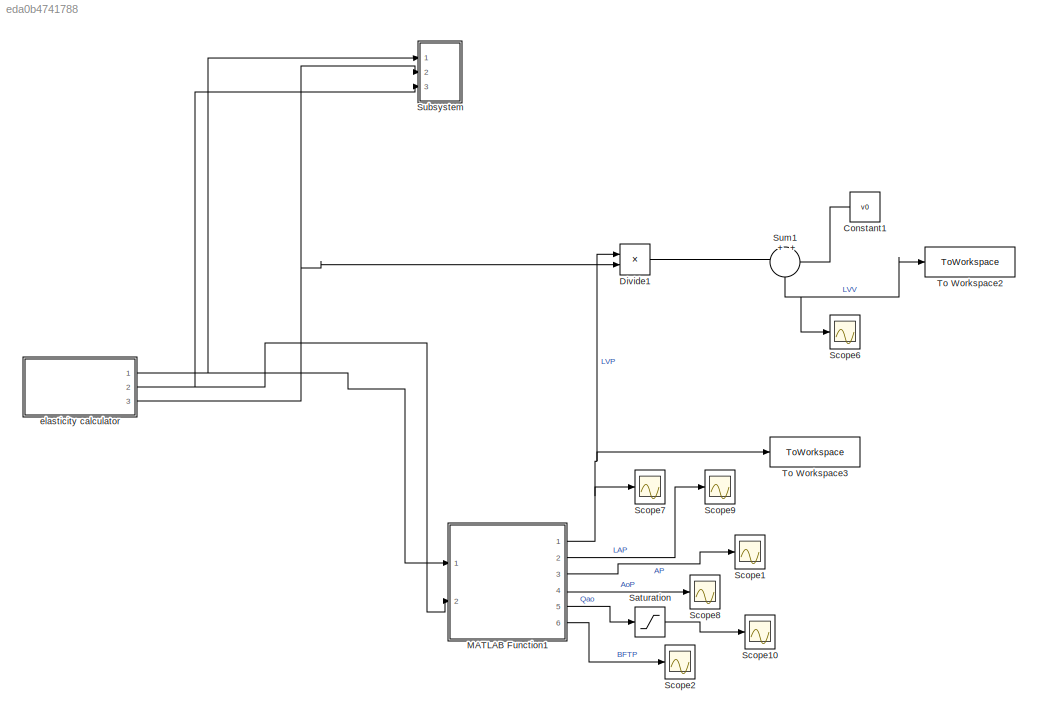
MODEL slx_eda0b4741788
KIND model
CONFIG AbsTol = auto
CONFIG EnableMultiTasking = off
CONFIG FixedStep = 1e-5
CONFIG MaxStep = auto
CONFIG MinStep = auto
CONFIG RelTol = 1e-3
CONFIG SampleTimeConstraint = Unconstrained
CONFIG SolverName = ode1
CONFIG StartTime = 0.0
CONFIG StopTime = 30
BLOCK [Constant] Constant1
  NameLocation = top
  Value = v0
BLOCK [Product] Divide1
  Inputs = */
  Ports = [2, 1]
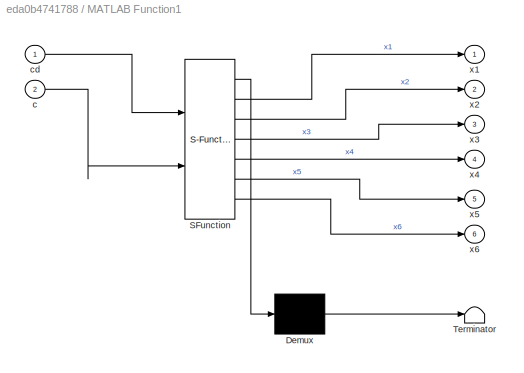
BLOCK [SubSystem] MATLAB Function1
  ErrorFcn = Stateflow.Translate.translate
  PermitHierarchicalResolution = ExplicitOnly
  Ports = [2, 6]
  RequestExecContextInheritance = off
  SFBlockType = MATLAB Function
  TreatAsAtomicUnit = on
BLOCK [Demux] MATLAB Function1/ Demux 
  Outputs = 1
  Ports = [1, 1]
BLOCK [S-Function] MATLAB Function1/ SFunction 
  EnableBusSupport = on
  FunctionName = sf_sfun
  PortCounts = [2 7]
  Ports = [2, 7]
  SFcnIsStateOwnerBlock = off
  SFunctionDeploymentMode = off
  Tag = Stateflow S-Function 3
BLOCK [Terminator] MATLAB Function1/ Terminator 
BLOCK [Inport] MATLAB Function1/c
  Port = 2
BLOCK [Inport] MATLAB Function1/cd
BLOCK [Outport] MATLAB Function1/x1
BLOCK [Outport] MATLAB Function1/x2
  Port = 2
BLOCK [Outport] MATLAB Function1/x3
  Port = 3
BLOCK [Outport] MATLAB Function1/x4
  Port = 4
BLOCK [Outport] MATLAB Function1/x5
  Port = 5
BLOCK [Outport] MATLAB Function1/x6
  Port = 6
BLOCK [Saturate] Saturation
  LowerLimit = 0
  UpperLimit = 770
BLOCK [Scope] Scope1
  Floating = off
  NumInputPorts = 1
  Ports = [1]
  ScopeSpecificationString = Simulink.scopes.TimeScopeBlockCfg('CurrentConfiguration', extmgr.ConfigurationSet(extmgr.Configuration('Core','General UI',true,'FigureColor',[1 1 1]),extmgr.Configuration('Core','Source UI',true),extmgr.Configuration('Sources','WiredSimulink',true,'DataLoggingVariableName','ScopeData7'),extmgr.Configuration('Visuals','Time Domain',true,'SerializedDisplays',{struct('MinYLimReal','-35.72145','MaxYL...<+2368ch>
BLOCK [Scope] Scope10
  Floating = off
  NumInputPorts = 1
  Ports = [1]
  ScopeSpecificationString = Simulink.scopes.TimeScopeBlockCfg('CurrentConfiguration', extmgr.ConfigurationSet(extmgr.Configuration('Core','General UI',true,'FigureColor',[1 1 1]),extmgr.Configuration('Core','Source UI',true),extmgr.Configuration('Sources','WiredSimulink',true,'DataLoggingVariableName','ScopeData4'),extmgr.Configuration('Visuals','Time Domain',true,'SerializedDisplays',{struct('MinYLimReal','-96.25','MaxYLimR...<+2366ch>
BLOCK [Scope] Scope2
  Floating = off
  NumInputPorts = 1
  Ports = [1]
  ScopeSpecificationString = Simulink.scopes.TimeScopeBlockCfg('CurrentConfiguration', extmgr.ConfigurationSet(extmgr.Configuration('Core','General UI',true,'FigureColor',[1 1 1]),extmgr.Configuration('Core','Source UI',true),extmgr.Configuration('Sources','WiredSimulink',true,'DataLoggingVariableName','ScopeData5'),extmgr.Configuration('Visuals','Time Domain',true,'SerializedDisplays',{struct('MinYLimReal','-54779.61484','Ma...<+2435ch>
BLOCK [Scope] Scope6
  Floating = off
  NumInputPorts = 1
  Ports = [1]
  ScopeSpecificationString = Simulink.scopes.TimeScopeBlockCfg('CurrentConfiguration', extmgr.ConfigurationSet(extmgr.Configuration('Core','General UI',true,'FigureColor',[1 1 1]),extmgr.Configuration('Core','Source UI',true),extmgr.Configuration('Sources','WiredSimulink',true,'DataLoggingVariableName','ScopeData8'),extmgr.Configuration('Visuals','Time Domain',true,'SerializedDisplays',{struct('MinYLimReal','37.02838','MaxYLi...<+2355ch>
BLOCK [Scope] Scope7
  Floating = off
  NumInputPorts = 1
  Ports = [1]
  ScopeSpecificationString = Simulink.scopes.TimeScopeBlockCfg('CurrentConfiguration', extmgr.ConfigurationSet(extmgr.Configuration('Core','General UI',true,'FigureColor',[1 1 1]),extmgr.Configuration('Core','Source UI',true),extmgr.Configuration('Sources','WiredSimulink',true,'DataLoggingVariableName','ScopeData2'),extmgr.Configuration('Visuals','Time Domain',true,'SerializedDisplays',{struct('MinYLimReal','-5.81114','MaxYLi...<+2391ch>
BLOCK [Scope] Scope8
  Floating = off
  NumInputPorts = 1
  Ports = [1]
  ScopeSpecificationString = Simulink.scopes.TimeScopeBlockCfg('CurrentConfiguration', extmgr.ConfigurationSet(extmgr.Configuration('Core','General UI',true,'FigureColor',[1 1 1]),extmgr.Configuration('Core','Source UI',true),extmgr.Configuration('Sources','WiredSimulink',true,'DataLoggingVariableName','ScopeData6'),extmgr.Configuration('Visuals','Time Domain',true,'SerializedDisplays',{struct('MinYLimReal','-59.11272','MaxYL...<+2374ch>
BLOCK [Scope] Scope9
  Floating = off
  NumInputPorts = 1
  Ports = [1]
  ScopeSpecificationString = Simulink.scopes.TimeScopeBlockCfg('CurrentConfiguration', extmgr.ConfigurationSet(extmgr.Configuration('Core','General UI',true,'FigureColor',[1 1 1]),extmgr.Configuration('Core','Source UI',true),extmgr.Configuration('Sources','WiredSimulink',true,'DataLoggingVariableName','ScopeData3'),extmgr.Configuration('Visuals','Time Domain',true,'SerializedDisplays',{struct('MinYLimReal','5.11583','MaxYLim...<+2366ch>
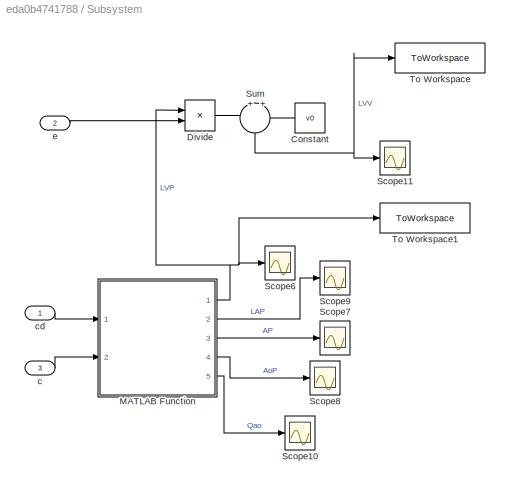
BLOCK [SubSystem] Subsystem
  Ports = [3]
  RequestExecContextInheritance = off
BLOCK [Constant] Subsystem/Constant
  NameLocation = top
  Value = v0
BLOCK [Product] Subsystem/Divide
  Inputs = */
  Ports = [2, 1]
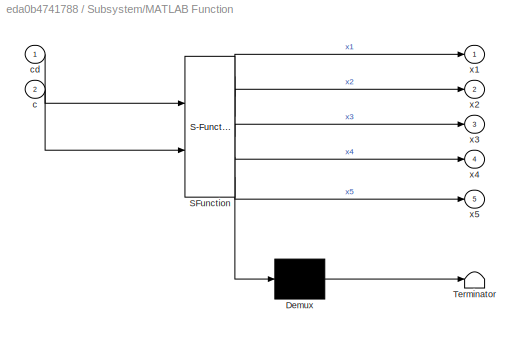
BLOCK [SubSystem] Subsystem/MATLAB Function
  ErrorFcn = Stateflow.Translate.translate
  PermitHierarchicalResolution = ExplicitOnly
  Ports = [2, 5]
  RequestExecContextInheritance = off
  SFBlockType = MATLAB Function
  TreatAsAtomicUnit = on
BLOCK [Demux] Subsystem/MATLAB Function/ Demux 
  Outputs = 1
  Ports = [1, 1]
BLOCK [S-Function] Subsystem/MATLAB Function/ SFunction 
  EnableBusSupport = on
  FunctionName = sf_sfun
  PortCounts = [2 6]
  Ports = [2, 6]
  SFcnIsStateOwnerBlock = off
  SFunctionDeploymentMode = off
  Tag = Stateflow S-Function 1
BLOCK [Terminator] Subsystem/MATLAB Function/ Terminator 
BLOCK [Inport] Subsystem/MATLAB Function/c
  Port = 2
BLOCK [Inport] Subsystem/MATLAB Function/cd
BLOCK [Outport] Subsystem/MATLAB Function/x1
BLOCK [Outport] Subsystem/MATLAB Function/x2
  Port = 2
BLOCK [Outport] Subsystem/MATLAB Function/x3
  Port = 3
BLOCK [Outport] Subsystem/MATLAB Function/x4
  Port = 4
BLOCK [Outport] Subsystem/MATLAB Function/x5
  Port = 5
BLOCK [Scope] Subsystem/Scope10
  Floating = off
  NumInputPorts = 1
  Ports = [1]
  ScopeSpecificationString = Simulink.scopes.TimeScopeBlockCfg('CurrentConfiguration', extmgr.ConfigurationSet(extmgr.Configuration('Core','General UI',true,'FigureColor',[1 1 1]),extmgr.Configuration('Core','Source UI',true),extmgr.Configuration('Sources','WiredSimulink',true,'DataLoggingVariableName','ScopeData13'),extmgr.Configuration('Visuals','Time Domain',true,'SerializedDisplays',{struct('MinYLimReal','-96.93572','MaxY...<+2369ch>
BLOCK [Scope] Subsystem/Scope11
  Floating = off
  NumInputPorts = 1
  Ports = [1]
  ScopeSpecificationString = Simulink.scopes.TimeScopeBlockCfg('CurrentConfiguration', extmgr.ConfigurationSet(extmgr.Configuration('Core','General UI',true,'FigureColor',[1 1 1]),extmgr.Configuration('Core','Source UI',true),extmgr.Configuration('Sources','WiredSimulink',true,'DataLoggingVariableName','ScopeData14'),extmgr.Configuration('Visuals','Time Domain',true,'SerializedDisplays',{struct('MinYLimReal','55.52124','MaxYL...<+2369ch>
BLOCK [Scope] Subsystem/Scope6
  Floating = off
  NumInputPorts = 1
  Ports = [1]
  ScopeSpecificationString = Simulink.scopes.TimeScopeBlockCfg('CurrentConfiguration', extmgr.ConfigurationSet(extmgr.Configuration('Core','General UI',true,'FigureColor',[1 1 1]),extmgr.Configuration('Core','Source UI',true),extmgr.Configuration('Sources','WiredSimulink',true,'DataLoggingVariableName','ScopeData9'),extmgr.Configuration('Visuals','Time Domain',true,'SerializedDisplays',{struct('MinYLimReal','-11.95975','MaxYL...<+2370ch>
BLOCK [Scope] Subsystem/Scope7
  Floating = off
  NumInputPorts = 1
  Ports = [1]
  ScopeSpecificationString = Simulink.scopes.TimeScopeBlockCfg('CurrentConfiguration', extmgr.ConfigurationSet(extmgr.Configuration('Core','General UI',true,'FigureColor',[1 1 1]),extmgr.Configuration('Core','Source UI',true),extmgr.Configuration('Sources','WiredSimulink',true,'DataLoggingVariableName','ScopeData10'),extmgr.Configuration('Visuals','Time Domain',true,'SerializedDisplays',{struct('MinYLimReal','63.71827','MaxYL...<+2369ch>
BLOCK [Scope] Subsystem/Scope8
  Floating = off
  NumInputPorts = 1
  Ports = [1]
  ScopeSpecificationString = Simulink.scopes.TimeScopeBlockCfg('CurrentConfiguration', extmgr.ConfigurationSet(extmgr.Configuration('Core','General UI',true,'FigureColor',[1 1 1]),extmgr.Configuration('Core','Source UI',true),extmgr.Configuration('Sources','WiredSimulink',true,'DataLoggingVariableName','ScopeData11'),extmgr.Configuration('Visuals','Time Domain',true,'SerializedDisplays',{struct('MinYLimReal','63.5398','MaxYLi...<+2709ch>
BLOCK [Scope] Subsystem/Scope9
  Floating = off
  NumInputPorts = 1
  Ports = [1]
  ScopeSpecificationString = Simulink.scopes.TimeScopeBlockCfg('CurrentConfiguration', extmgr.ConfigurationSet(extmgr.Configuration('Core','General UI',true,'FigureColor',[1 1 1]),extmgr.Configuration('Core','Source UI',true),extmgr.Configuration('Sources','WiredSimulink',true,'DataLoggingVariableName','ScopeData12'),extmgr.Configuration('Visuals','Time Domain',true,'SerializedDisplays',{struct('MinYLimReal','5.77325','MaxYLi...<+2367ch>
BLOCK [Sum] Subsystem/Sum
  Inputs = +|+
  NameLocation = left
  Ports = [2, 1]
BLOCK [ToWorkspace] Subsystem/To Workspace
  FixptAsFi = on
  MaxDataPoints = inf
  Ports = [1]
  SampleTime = -1
  VariableName = LVV
BLOCK [ToWorkspace] Subsystem/To Workspace1
  FixptAsFi = on
  MaxDataPoints = inf
  Ports = [1]
  SampleTime = -1
  VariableName = LVP
BLOCK [Inport] Subsystem/c
  Port = 3
BLOCK [Inport] Subsystem/cd
BLOCK [Inport] Subsystem/e
  Port = 2
BLOCK [Sum] Sum1
  Inputs = +|+
  NameLocation = left
  Ports = [2, 1]
BLOCK [ToWorkspace] To Workspace2
  FixptAsFi = on
  MaxDataPoints = inf
  Ports = [1]
  SampleTime = -1
  VariableName = LVV2
BLOCK [ToWorkspace] To Workspace3
  FixptAsFi = on
  MaxDataPoints = inf
  Ports = [1]
  SampleTime = -1
  VariableName = LVP2
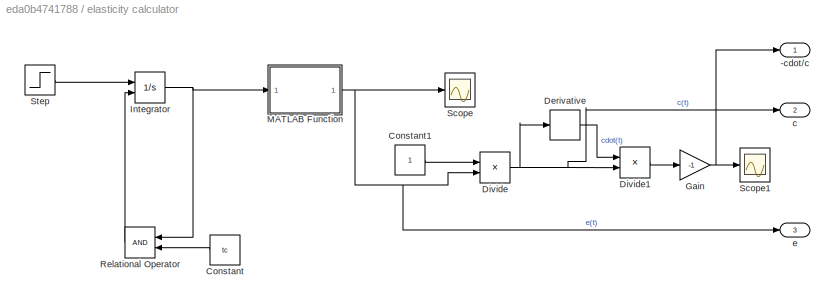
BLOCK [SubSystem] elasticity calculator
  Ports = [0, 3]
  RequestExecContextInheritance = off
BLOCK [Outport] elasticity calculator/-cdot//c
BLOCK [Constant] elasticity calculator/Constant
  NameLocation = top
  Value = tc
BLOCK [Constant] elasticity calculator/Constant1
BLOCK [Derivative] elasticity calculator/Derivative
BLOCK [Product] elasticity calculator/Divide
  Inputs = */
  Ports = [2, 1]
BLOCK [Product] elasticity calculator/Divide1
  Inputs = */
  Ports = [2, 1]
BLOCK [Gain] elasticity calculator/Gain
  Gain = -1
BLOCK [Integrator] elasticity calculator/Integrator
  ExternalReset = rising
  Ports = [2, 1]
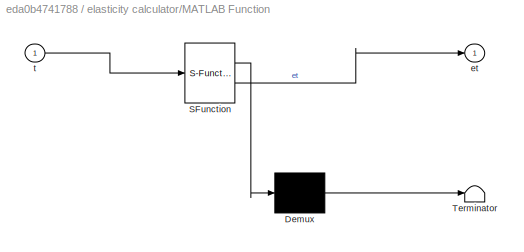
BLOCK [SubSystem] elasticity calculator/MATLAB Function
  ErrorFcn = Stateflow.Translate.translate
  PermitHierarchicalResolution = ExplicitOnly
  Ports = [1, 1]
  RequestExecContextInheritance = off
  SFBlockType = MATLAB Function
  TreatAsAtomicUnit = on
BLOCK [Demux] elasticity calculator/MATLAB Function/ Demux 
  Outputs = 1
  Ports = [1, 1]
BLOCK [S-Function] elasticity calculator/MATLAB Function/ SFunction 
  EnableBusSupport = on
  FunctionName = sf_sfun
  PortCounts = [1 2]
  Ports = [1, 2]
  SFcnIsStateOwnerBlock = off
  SFunctionDeploymentMode = off
  Tag = Stateflow S-Function 2
BLOCK [Terminator] elasticity calculator/MATLAB Function/ Terminator 
BLOCK [Outport] elasticity calculator/MATLAB Function/et
BLOCK [Inport] elasticity calculator/MATLAB Function/t
BLOCK [RelationalOperator] elasticity calculator/Relational Operator
  InputSameDT = off
  NameLocation = top
  OutDataTypeStr = boolean
  Ports = [2, 1]
  RndMeth = Simplest
BLOCK [Scope] elasticity calculator/Scope
  Floating = off
  NumInputPorts = 1
  Ports = [1]
  ScopeSpecificationString = Simulink.scopes.TimeScopeBlockCfg('CurrentConfiguration', extmgr.ConfigurationSet(extmgr.Configuration('Core','General UI',true,'FigureColor',[1 1 1]),extmgr.Configuration('Core','Source UI',true),extmgr.Configuration('Sources','WiredSimulink',true),extmgr.Configuration('Visuals','Time Domain',true,'SerializedDisplays',{struct('MinYLimReal','-0.18155','MaxYLimReal','2.23391','YLabelReal','E_t mmHg...<+2320ch>
BLOCK [Scope] elasticity calculator/Scope1
  Floating = off
  NumInputPorts = 1
  Ports = [1]
  ScopeSpecificationString = Simulink.scopes.TimeScopeBlockCfg('CurrentConfiguration', extmgr.ConfigurationSet(extmgr.Configuration('Core','General UI',true,'FigureColor',[1 1 1]),extmgr.Configuration('Core','Source UI',true),extmgr.Configuration('Sources','WiredSimulink',true,'DataLoggingVariableName','ScopeData1'),extmgr.Configuration('Visuals','Time Domain',true,'SerializedDisplays',{struct('MinYLimReal','-42.88687','MaxYL...<+2389ch>
BLOCK [Step] elasticity calculator/Step
  SampleTime = 0
  Time = 0
BLOCK [Outport] elasticity calculator/c
  Port = 2
BLOCK [Outport] elasticity calculator/e
  Port = 3
LINE Constant1:1 -> Sum1:2
LINE Divide1:1 -> Sum1:1
NET MATLAB Function1:1 -> Divide1:1, Scope7:1, To Workspace3:1
LINE MATLAB Function1:2 -> Scope9:1
LINE MATLAB Function1:3 -> Scope1:1
LINE MATLAB Function1:4 -> Scope8:1
LINE MATLAB Function1:5 -> Saturation:1
LINE MATLAB Function1:6 -> Scope2:1
LINE Saturation:1 -> Scope10:1
LINE Subsystem/Constant:1 -> Subsystem/Sum:2
LINE Subsystem/Divide:1 -> Subsystem/Sum:1
NET Subsystem/MATLAB Function:1 -> Subsystem/Divide:1, Subsystem/Scope6:1, Subsystem/To Workspace1:1
LINE Subsystem/MATLAB Function:2 -> Subsystem/Scope9:1
LINE Subsystem/MATLAB Function:3 -> Subsystem/Scope7:1
LINE Subsystem/MATLAB Function:4 -> Subsystem/Scope8:1
LINE Subsystem/MATLAB Function:5 -> Subsystem/Scope10:1
NET Subsystem/Sum:1 -> Subsystem/Scope11:1, Subsystem/To Workspace:1
LINE Subsystem/c:1 -> Subsystem/MATLAB Function:2
LINE Subsystem/cd:1 -> Subsystem/MATLAB Function:1
LINE Subsystem/e:1 -> Subsystem/Divide:2
NET Sum1:1 -> Scope6:1, To Workspace2:1
LINE elasticity calculator/Constant1:1 -> elasticity calculator/Divide:1
LINE elasticity calculator/Constant:1 -> elasticity calculator/Relational Operator:2
LINE elasticity calculator/Derivative:1 -> elasticity calculator/Divide1:1
LINE elasticity calculator/Divide1:1 -> elasticity calculator/Gain:1
NET elasticity calculator/Divide:1 -> elasticity calculator/Derivative:1, elasticity calculator/Divide1:2, elasticity calculator/c:1
NET elasticity calculator/Gain:1 -> elasticity calculator/-cdot//c:1, elasticity calculator/Scope1:1
NET elasticity calculator/Integrator:1 -> elasticity calculator/MATLAB Function:1, elasticity calculator/Relational Operator:1
NET elasticity calculator/MATLAB Function:1 -> elasticity calculator/Divide:2, elasticity calculator/Scope:1, elasticity calculator/e:1
LINE elasticity calculator/Relational Operator:1 -> elasticity calculator/Integrator:2
LINE elasticity calculator/Step:1 -> elasticity calculator/Integrator:1
NET elasticity calculator:1 -> MATLAB Function1:1, Subsystem:1
NET elasticity calculator:2 -> MATLAB Function1:2, Subsystem:3
NET elasticity calculator:3 -> Divide1:2, Subsystem:2
note: NET lines group one-source signal fan-out (src -> all destinations, sorted); 1:1 wires keep LINE
CHART Subsystem/MATLAB Function states=1 transitions=1
  STATE_LABEL 'eML_blk_kernel()'
  STATE_LABEL 'SCRIPT:\nfunction [x1,x2,x3,x4,x5]= fcn(cd, c)\npersistent x1up x2up x3up x4up x5up;\n% persistent aup;\nif (isempty(x1up) || isempty(x2up) || isempty(x3up) || isempty(x4up) || isempty(x5up)) \n    x1up = 8.5; %lvp\n    x2up = 7; %lap\n    x3up = 75; %ap -->???????????????????\n    x4up = 75; %aop\n    x5up = 0; %qao\n%     x1up = 10;\n%     x2up = 10;\n%     x3up = 10;\n%     x4up = 10;\n%     x5up = 10;\n%    ...<+651ch>'
CHART elasticity calculator/MATLAB Function states=1 transitions=1
  STATE_LABEL 'eML_blk_kernel()'
  STATE_LABEL 'SCRIPT:\nfunction et = fcn(t)\nHR = 60;\ntc = 60/HR;\ntmax = 0.2+0.15*tc;\ntn = t/tmax;\nen = 1.55*((tn/0.7)^(1.9)/(1 + (tn/0.7)^(1.9)))*(1/(1 + (tn/1.17)^(21.9)));\nemax = 2;emin = 0.06;\net = (emax - emin)*en + emin;\n\n'
CHART MATLAB Function1 states=1 transitions=1
  STATE_LABEL 'eML_blk_kernel()'
  STATE_LABEL 'SCRIPT:\nfunction [x1,x2,x3,x4,x5,x6]= fcn2(cd, c)\npersistent x1up x2up x3up x4up x5up x6up;\nif (isempty(x1up) || isempty(x2up) || isempty(x3up) || isempty(x4up) || isempty(x5up) || isempty(x6up)) \n    x1up = 8.5; %lvp\n    x2up = 7; %lap\n    x3up = 75; %ap -->???????????????????\n    x4up = 75; %aop\n    x5up = 0; %qao\n    x6up = 12; %new state\nend\nrs = 1; rm = 0.8; ra = 0.001; rc = 0.0398;\ncr = 4.4;...<+939ch>'
CHART  states=0 transitions=0
CHART  states=0 transitions=0
CHART  states=0 transitions=0
